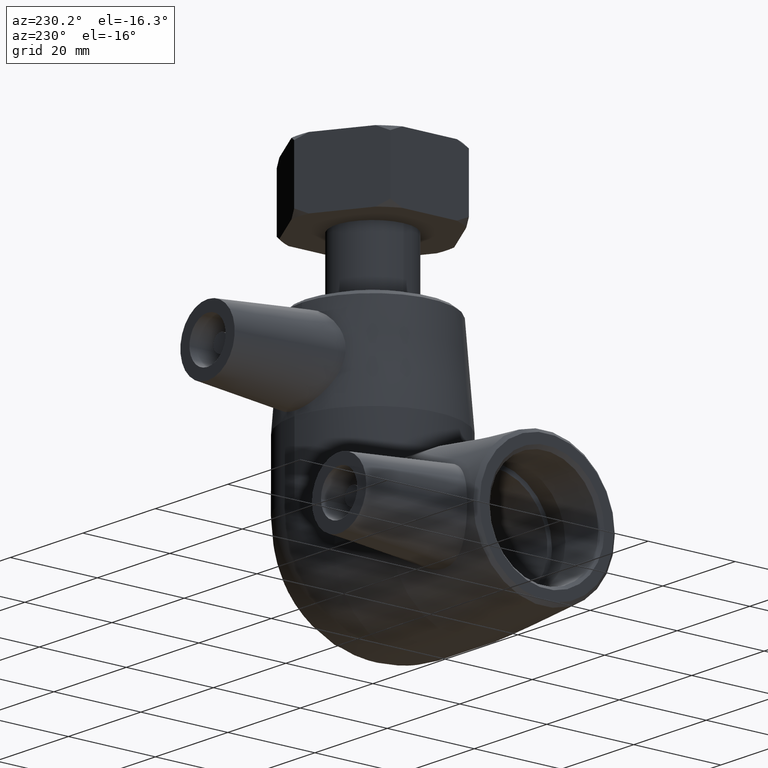
[diagram: clean part render]
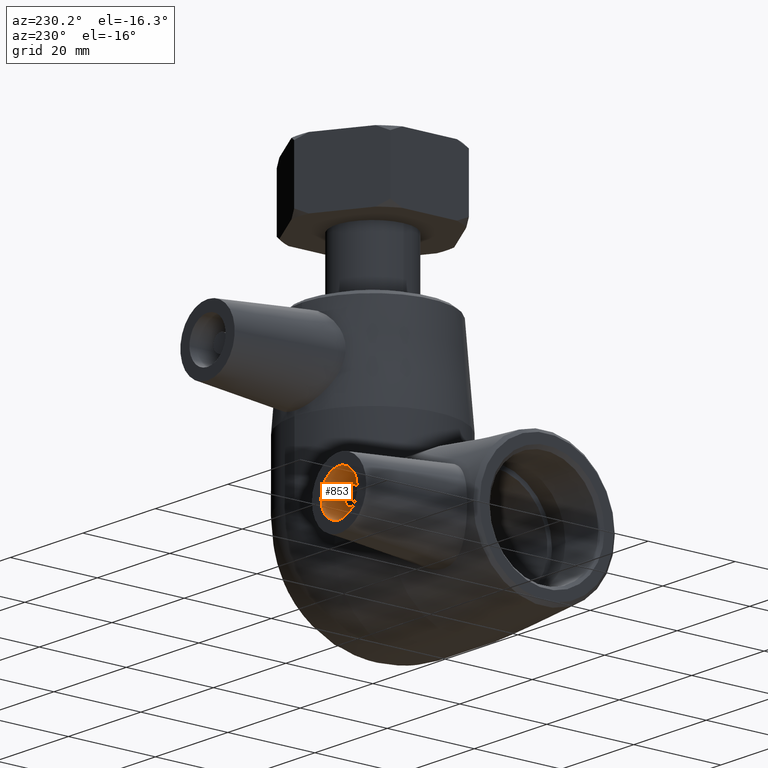
[diagram: same view with one face highlighted and labeled with its STEP entity id]
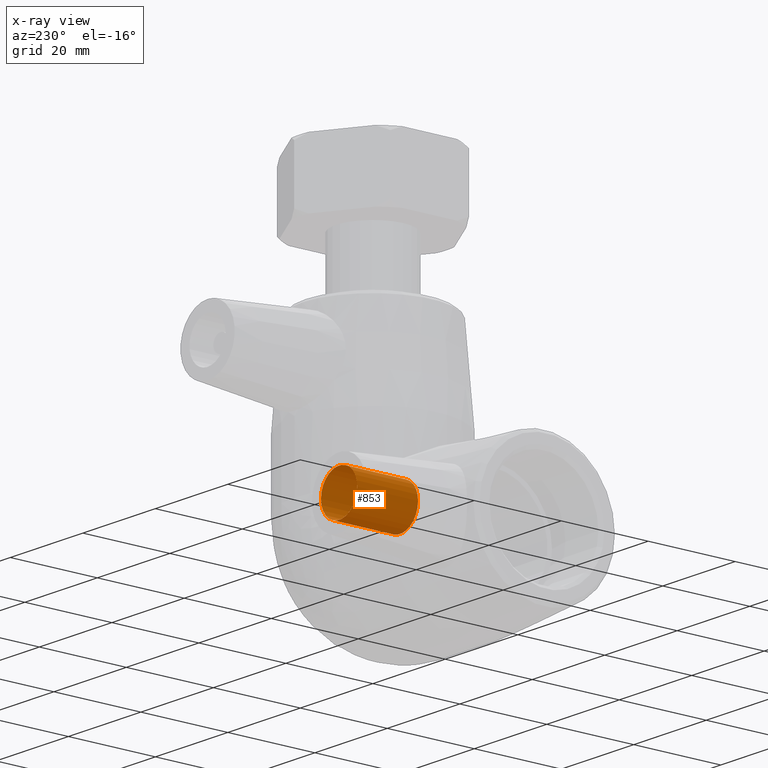
[diagram: x-ray of the same camera — body ghosted, the highlighted face saturated]
A machine part, auxiliary view. The second image highlights one B-rep face of the part: STEP entity #853.
The next image is the same camera in x-ray: the body ghosted, the highlighted face saturated — about 0% of this face is hidden behind the body in this view.
In plain terms, the highlighted cylindrical surface (bore or boss wall) has radius 5 mm, axis along (0, -1, 0).
Its self-contained STEP definition (entity closure, byte-faithful):
#97=CYLINDRICAL_SURFACE('',#972,5.);
#159=FACE_BOUND('',#322,.T.);
#222=FACE_OUTER_BOUND('',#321,.T.);
#321=EDGE_LOOP('',(#760));
#322=EDGE_LOOP('',(#761));
#385=CIRCLE('',#973,5.);
#386=CIRCLE('',#974,5.);
#465=VERTEX_POINT('',#1616);
#466=VERTEX_POINT('',#1618);
#567=EDGE_CURVE('',#465,#465,#385,.T.);
#568=EDGE_CURVE('',#466,#466,#386,.T.);
#760=ORIENTED_EDGE('',*,*,#567,.T.);
#761=ORIENTED_EDGE('',*,*,#568,.F.);
#853=ADVANCED_FACE('',(#222,#159),#97,.F.);
#972=AXIS2_PLACEMENT_3D('',#1615,#1220,#1221);
#973=AXIS2_PLACEMENT_3D('',#1617,#1222,#1223);
#974=AXIS2_PLACEMENT_3D('',#1619,#1224,#1225);
#1220=DIRECTION('center_axis',(0.,-1.,0.));
#1221=DIRECTION('ref_axis',(-1.,0.,0.));
#1222=DIRECTION('center_axis',(0.,-1.,0.));
#1223=DIRECTION('ref_axis',(-1.,0.,0.));
#1224=DIRECTION('center_axis',(0.,-1.,0.));
#1225=DIRECTION('ref_axis',(-1.,0.,0.));
#1615=CARTESIAN_POINT('Origin',(-36.3,38.,0.));
#1616=CARTESIAN_POINT('',(-31.3,24.,-6.12323399573677E-16));
#1617=CARTESIAN_POINT('Origin',(-36.3,24.,0.));
#1618=CARTESIAN_POINT('',(-31.3,38.,-6.12323399573677E-16));
#1619=CARTESIAN_POINT('Origin',(-36.3,38.,0.));